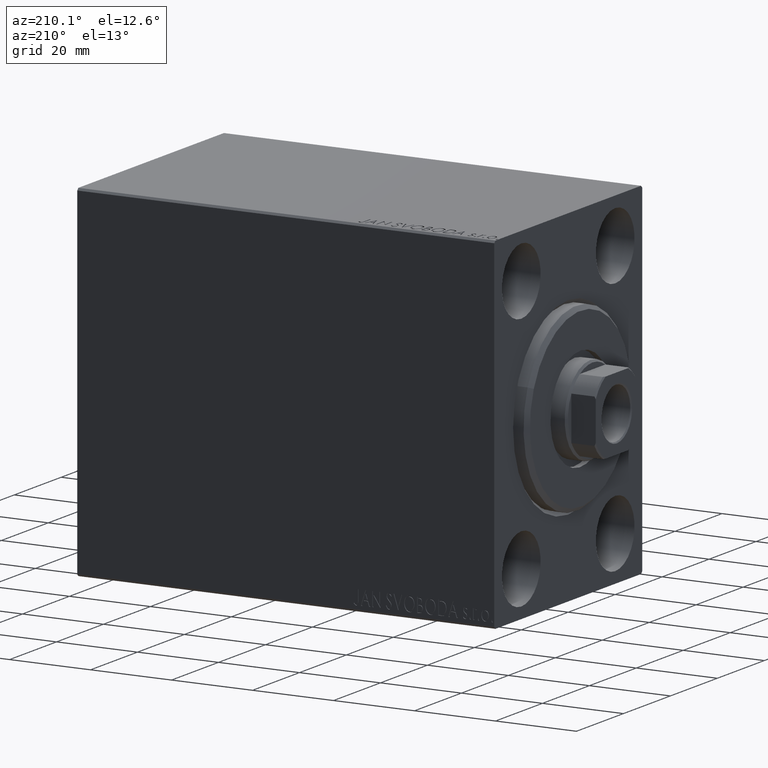
[diagram: clean part render]
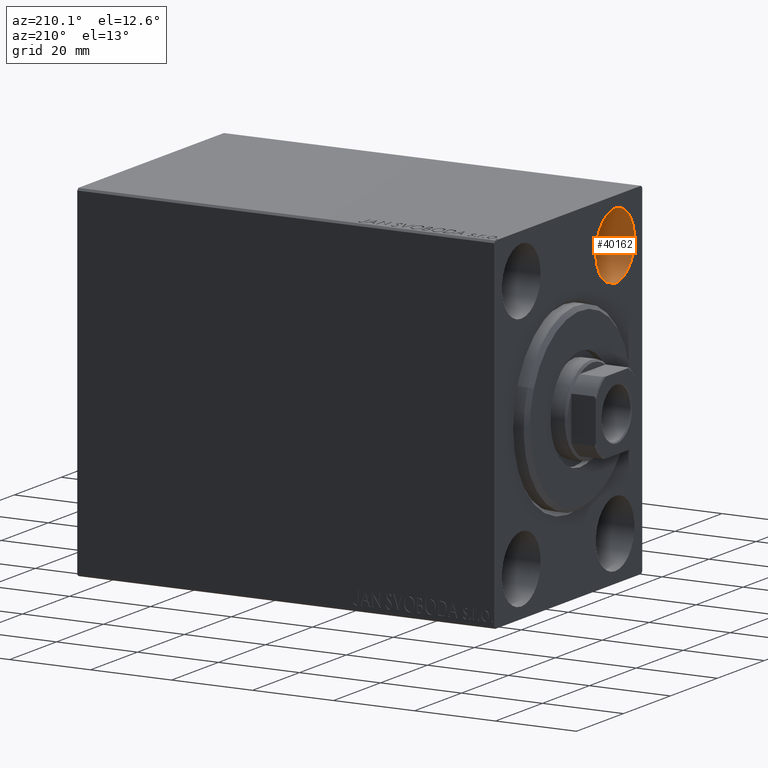
[diagram: same view with one face highlighted and labeled with its STEP entity id]
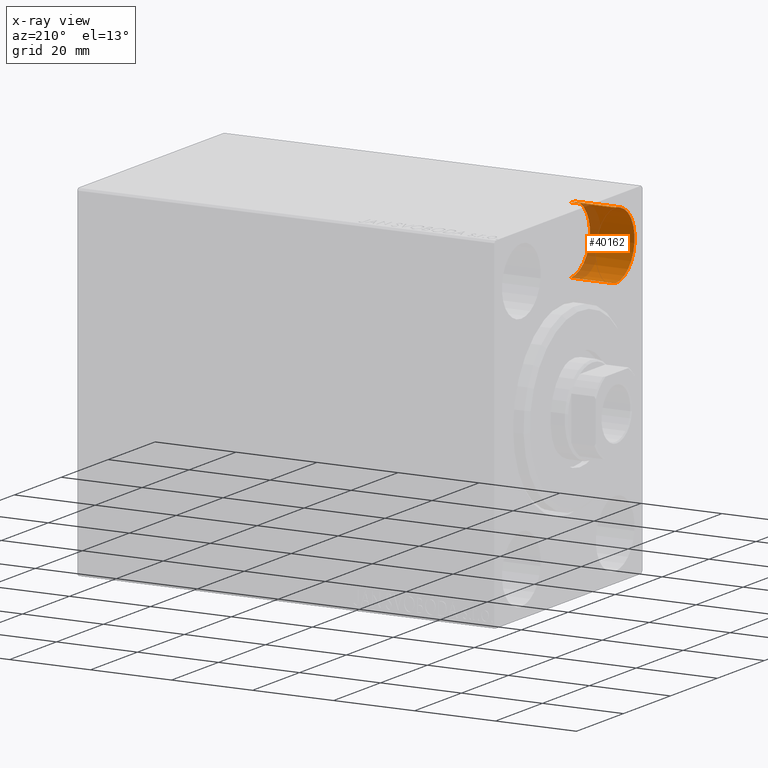
[diagram: x-ray of the same camera — body ghosted, the highlighted face saturated]
A machine part, auxiliary view. The second image highlights one B-rep face of the part: STEP entity #40162.
The next image is the same camera in x-ray: the body ghosted, the highlighted face saturated — about 22% of this face is hidden behind the body in this view.
In plain terms, the highlighted cylindrical surface (partial cylindrical patch) has radius 8.25 mm, axis along (-1, -0, -0).
Its self-contained STEP definition (entity closure, byte-faithful):
#473 = VECTOR ( 'NONE', #18366, 1000.000000000000000 ) ;
#1151 = EDGE_LOOP ( 'NONE', ( #35600, #4043, #41812, #27536 ) ) ;
#2009 = CARTESIAN_POINT ( 'NONE',  ( 11.00000000000000000, -19.99999999999999645, 39.74999999999999289 ) ) ;
#3128 = CARTESIAN_POINT ( 'NONE',  ( 11.00000000000000000, -19.99999999999999645, 31.50000000000000000 ) ) ;
#3492 = CIRCLE ( 'NONE', #26084, 8.249999999999992895 ) ;
#4043 = ORIENTED_EDGE ( 'NONE', *, *, #9116, .T. ) ;
#4281 = EDGE_CURVE ( 'NONE', #31136, #9496, #15178, .T. ) ;
#7996 = CARTESIAN_POINT ( 'NONE',  ( 11.00000000000000000, -19.99999999999999645, 31.50000000000000000 ) ) ;
#8207 = FACE_OUTER_BOUND ( 'NONE', #1151, .T. ) ;
#9116 = EDGE_CURVE ( 'NONE', #31136, #30805, #23199, .T. ) ;
#9496 = VERTEX_POINT ( 'NONE', #21952 ) ;
#10829 = CARTESIAN_POINT ( 'NONE',  ( 11.00000000000000000, -19.99999999999999645, 23.25000000000000355 ) ) ;
#13535 = DIRECTION ( 'NONE',  ( -1.000000000000000000, 0.000000000000000000, 0.000000000000000000 ) ) ;
#13818 = EDGE_CURVE ( 'NONE', #9496, #20458, #29402, .T. ) ;
#14486 = AXIS2_PLACEMENT_3D ( 'NONE', #3128, #27000, #26771 ) ;
#14524 = VECTOR ( 'NONE', #36901, 1000.000000000000000 ) ;
#15178 = CIRCLE ( 'NONE', #14486, 8.249999999999992895 ) ;
#16843 = CARTESIAN_POINT ( 'NONE',  ( 0.000000000000000000, -19.99999999999999645, 31.50000000000000000 ) ) ;
#17508 = CYLINDRICAL_SURFACE ( 'NONE', #35508, 8.249999999999992895 ) ;
#18366 = DIRECTION ( 'NONE',  ( -1.000000000000000000, -0.000000000000000000, -0.000000000000000000 ) ) ;
#19880 = CARTESIAN_POINT ( 'NONE',  ( 11.00000000000000000, -19.99999999999999645, 23.25000000000000355 ) ) ;
#20458 = VERTEX_POINT ( 'NONE', #20586 ) ;
#20586 = CARTESIAN_POINT ( 'NONE',  ( 0.000000000000000000, -19.99999999999999645, 39.74999999999999289 ) ) ;
#21423 = EDGE_CURVE ( 'NONE', #30805, #20458, #3492, .T. ) ;
#21952 = CARTESIAN_POINT ( 'NONE',  ( 11.00000000000000000, -19.99999999999999645, 39.74999999999999289 ) ) ;
#23199 = LINE ( 'NONE', #19880, #14524 ) ;
#25002 = DIRECTION ( 'NONE',  ( 0.000000000000000000, 0.000000000000000000, 1.000000000000000000 ) ) ;
#26084 = AXIS2_PLACEMENT_3D ( 'NONE', #16843, #13535, #27009 ) ;
#26771 = DIRECTION ( 'NONE',  ( 0.000000000000000000, 0.000000000000000000, 1.000000000000000000 ) ) ;
#26794 = CARTESIAN_POINT ( 'NONE',  ( 0.000000000000000000, -19.99999999999999645, 23.25000000000000355 ) ) ;
#27000 = DIRECTION ( 'NONE',  ( -1.000000000000000000, 0.000000000000000000, 0.000000000000000000 ) ) ;
#27009 = DIRECTION ( 'NONE',  ( 0.000000000000000000, 0.000000000000000000, 1.000000000000000000 ) ) ;
#27536 = ORIENTED_EDGE ( 'NONE', *, *, #13818, .F. ) ;
#29402 = LINE ( 'NONE', #2009, #473 ) ;
#30805 = VERTEX_POINT ( 'NONE', #26794 ) ;
#31136 = VERTEX_POINT ( 'NONE', #10829 ) ;
#34293 = DIRECTION ( 'NONE',  ( -1.000000000000000000, -0.000000000000000000, -0.000000000000000000 ) ) ;
#35508 = AXIS2_PLACEMENT_3D ( 'NONE', #7996, #34293, #25002 ) ;
#35600 = ORIENTED_EDGE ( 'NONE', *, *, #4281, .F. ) ;
#36901 = DIRECTION ( 'NONE',  ( -1.000000000000000000, -0.000000000000000000, -0.000000000000000000 ) ) ;
#40162 = ADVANCED_FACE ( 'NONE', ( #8207 ), #17508, .F. ) ;
#41812 = ORIENTED_EDGE ( 'NONE', *, *, #21423, .T. ) ;